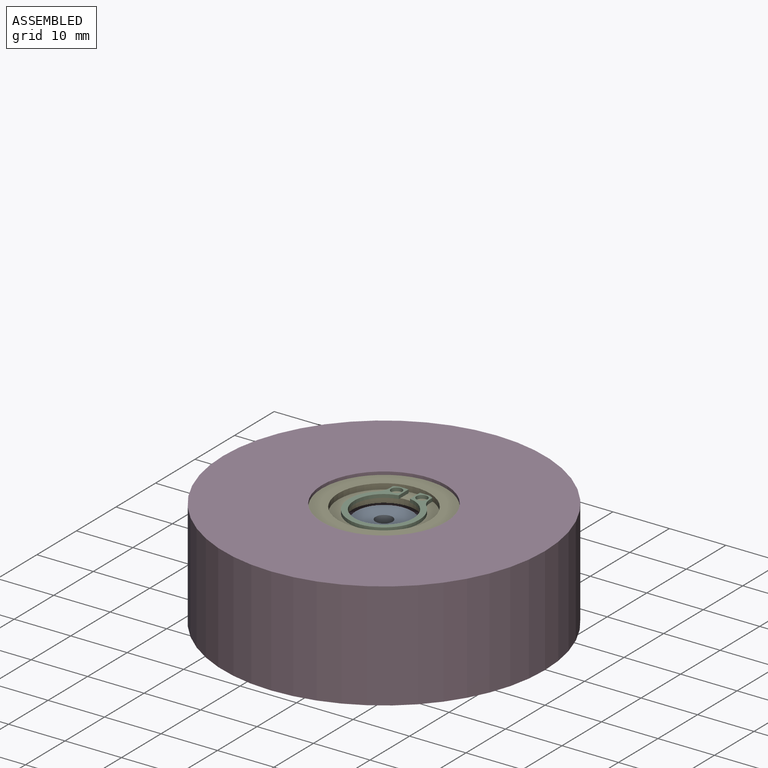
[diagram: assembled view]
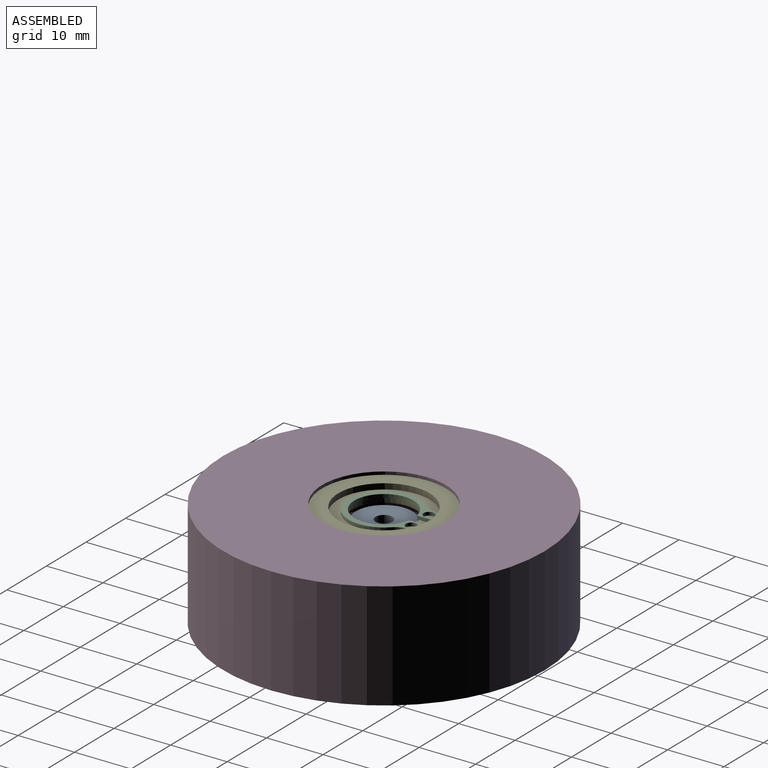
[diagram: assembled view, second angle]
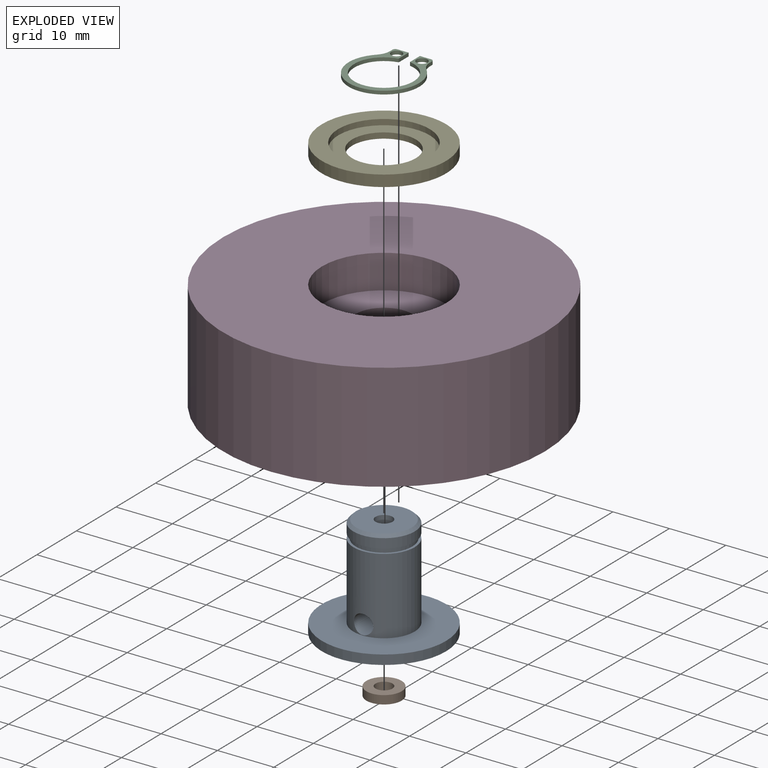
[diagram: exploded view]
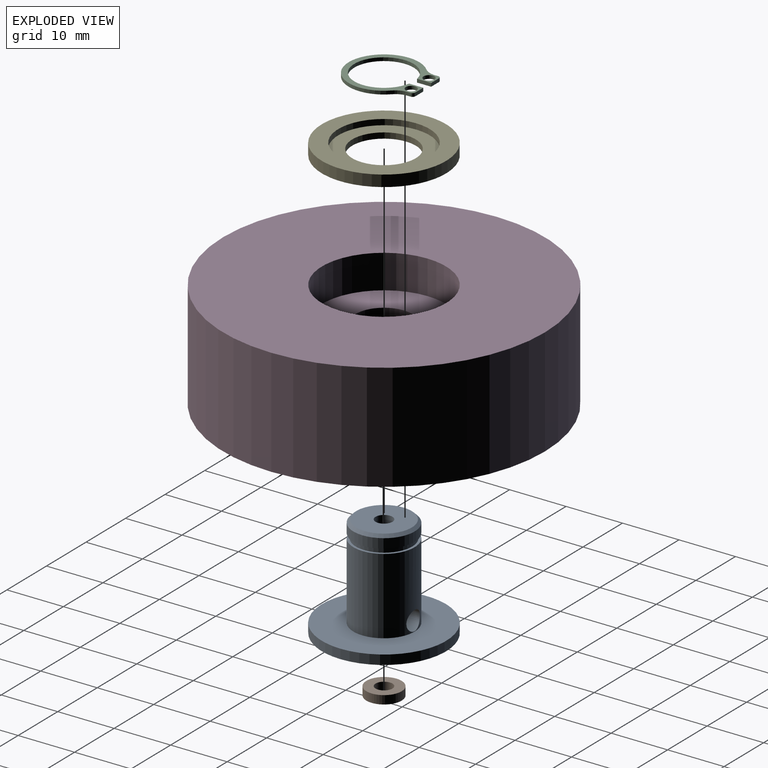
[diagram: exploded view, second angle]
ASSEMBLY  parts=5 mates=4
PART A: 15 faces, bbox 22x22x18.2 mm
  f0: cylinder r=1.5mm len=13.96mm, axis (0,0,-1), area 126.9mm2, adj f11,f14
  f1: cylinder r=3.12mm len=6.25mm, axis (0,0,-1), area 32.8mm2, adj f4,f7
  f2: cylinder r=11mm len=22mm, axis (0,0,-1), area 115.4mm2, adj f3,f4
  f3: plane 22x22mm, normal (0,0,1), area 287.7mm2, adj f2,f6
  f4: plane 22x22mm, normal (0,0,-1), area 349.5mm2, adj f1,f2
  f5: plane 10.85x10.85mm, normal (0,0,1), area 13.9mm2, adj f6,f8
  f6: cylinder r=5.42mm len=13.5mm, axis (0,0,-1), area 441.8mm2, adj f3,f5,f14
  f7: plane 6.25x6.25mm, normal (0,0,-1), area 23.6mm2, adj f1,f13
  f8: cylinder r=5mm len=10mm, axis (0,0,-1), area 26.7mm2, adj f5,f10
  f9: cylinder r=5.42mm len=10.85mm, axis (0,0,-1), area 56.9mm2, adj f10,f12
  f10: plane 10.85x10.85mm, normal (0,0,-1), area 13.9mm2, adj f8,f9
  f11: plane 9.85x9.85mm, normal (0,0,1), area 69.1mm2, adj f0,f12
  f12: cone r=4.92mm half-angle=45deg, axis (0,0,-1), area 23mm2, adj f9,f11
  f13: cylinder r=1.5mm len=3mm, axis (0,0,-1), area 4.5mm2, adj f7,f14
  f14: cylinder r=1.7mm len=10.85mm, axis (0,-1,0), area 96.7mm2, adj f0,f6,f13
PART B: 4 faces, bbox 6.3x6.3x1.5 mm
  f0: cylinder r=1.5mm len=3mm, axis (0,0,1), area 14.1mm2, adj f2,f3
  f1: cylinder r=3.12mm len=6.25mm, axis (0,0,1), area 29.5mm2, adj f2,f3
  f2: plane 6.25x6.25mm, normal (0,0,-1), area 23.6mm2, adj f0,f1
  f3: plane 6.25x6.25mm, normal (0,0,1), area 23.6mm2, adj f0,f1
PART C: 16 faces, bbox 12.5x13.9x0.6 mm
  f0: plane 2x0.6mm, normal (0,-1,0), area 1.2mm2, adj f1,f13,f14,f15
  f1: cylinder r=0.5mm len=0.6mm, axis (0,0,-1), area 0.5mm2, adj f0,f2,f14,f15
  f2: plane 0.6x0.57mm, normal (1,0,0), area 0.3mm2, adj f1,f3,f14,f15
  f3: cylinder r=3mm len=2.13mm, axis (0,0,-1), area 1.4mm2, adj f2,f4,f14,f15
  f4: cylinder r=6.25mm len=12.5mm, axis (0,0,-1), area 17.7mm2, adj f3,f5,f14,f15
  f5: cylinder r=3mm len=2.13mm, axis (0,0,-1), area 1.4mm2, adj f4,f6,f14,f15
  f6: plane 0.6x0.57mm, normal (-1,0,0), area 0.3mm2, adj f5,f7,f14,f15
  f7: cylinder r=0.5mm len=0.6mm, axis (0,0,-1), area 0.5mm2, adj f6,f8,f14,f15
  f8: plane 2x0.6mm, normal (0,-1,0), area 1.2mm2, adj f7,f9,f14,f15
  f9: plane 2.5x0.6mm, normal (1,0,0), area 1.5mm2, adj f8,f10,f14,f15
  f10: cylinder r=5.25mm len=10.5mm, axis (0,0,-1), area 18.6mm2, adj f9,f13,f14,f15
  f11: cylinder r=0.97mm len=1.94mm, axis (0,0,-1), area 3.7mm2, adj f14,f15
  f12: cylinder r=0.97mm len=1.94mm, axis (0,0,-1), area 3.7mm2, adj f14,f15
  f13: plane 2.5x0.6mm, normal (-1,0,0), area 1.5mm2, adj f0,f10,f14,f15
  f14: plane 13.9x12.5mm, normal (0,0,1), area 38mm2, adj f0,f1,f2,f3,f4,f5,f6,f7
  f15: plane 13.9x12.5mm, normal (0,0,-1), area 38mm2, adj f0,f1,f2,f3,f4,f5,f6,f7
PART D: 6 faces, bbox 57x57x19.1 mm
  f0: cylinder r=5mm len=13.05mm, axis (0,0,-1), area 410mm2, adj f2,f5
  f1: cylinder r=28.5mm len=57mm, axis (0,0,-1), area 3411.3mm2, adj f2,f3
  f2: plane 57x57mm, normal (0,0,1), area 2473.2mm2, adj f0,f1
  f3: plane 57x57mm, normal (0,0,-1), area 2171.6mm2, adj f1,f4
  f4: cylinder r=11mm len=22mm, axis (0,0,-1), area 414.7mm2, adj f3,f5
  f5: plane 22x22mm, normal (0,0,-1), area 301.6mm2, adj f0,f4
PART E: 6 faces, bbox 22x22x2 mm
  f0: cylinder r=5.64mm len=11.27mm, axis (0,0,-1), area 35.4mm2, adj f2,f5
  f1: cylinder r=11mm len=22mm, axis (0,0,-1), area 138.2mm2, adj f2,f3
  f2: plane 22x22mm, normal (0,0,1), area 280.4mm2, adj f0,f1
  f3: plane 22x22mm, normal (0,0,-1), area 174mm2, adj f1,f4
  f4: cylinder r=8.1mm len=16.2mm, axis (0,0,-1), area 50.9mm2, adj f3,f5
  f5: plane 16.2x16.2mm, normal (0,0,-1), area 106.4mm2, adj f0,f4
PLACE A t=(-39.51,-2.87,14.29)mm
PLACE B t=(-39.51,-2.87,15.79)mm
PLACE C rot(axis=(1,0,0),180deg) t=(-39.51,-2.87,34.08)mm
PLACE D rot(axis=(1,0,0),180deg) t=(-39.51,-2.87,35.01)mm
PLACE E rot(axis=(0,1,0),180deg) t=(-39.51,-2.87,34.48)mm
MATE fastened E.f1 <-> A.f6  axis (0,0,-1) through (-39.51,-2.87,32.48)mm
MATE fastened C.f10 <-> E.f4  axis (0,0,-1) through (-39.51,-2.87,33.48)mm
MATE fastened A.f2 <-> D.f0  axis (0,0,1) through (-39.51,-2.87,15.96)mm
MATE fastened B.f0 <-> A.f1  axis (0,0,-1) through (-39.51,-2.87,14.29)mm
